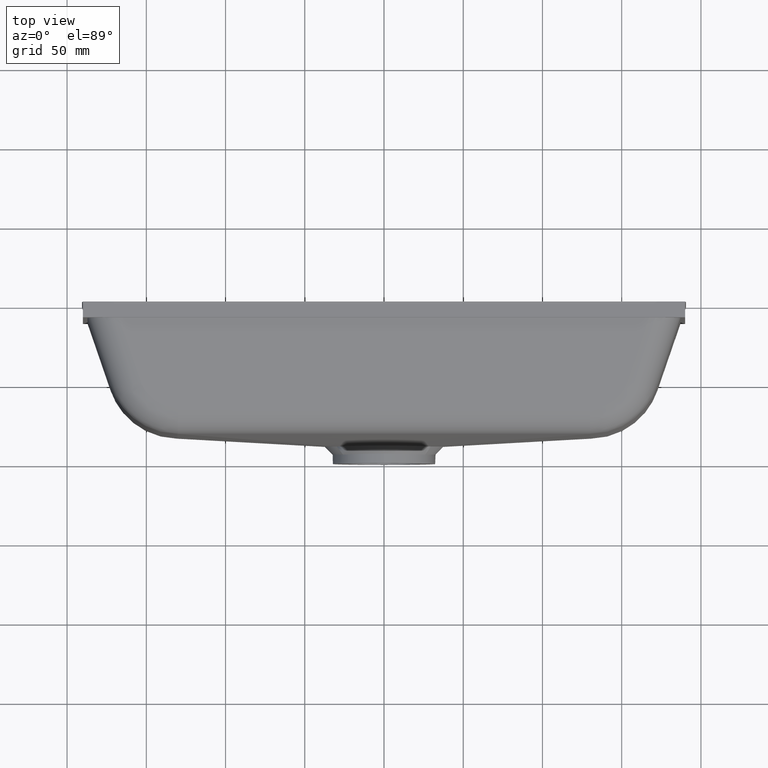
[diagram: clean part render]
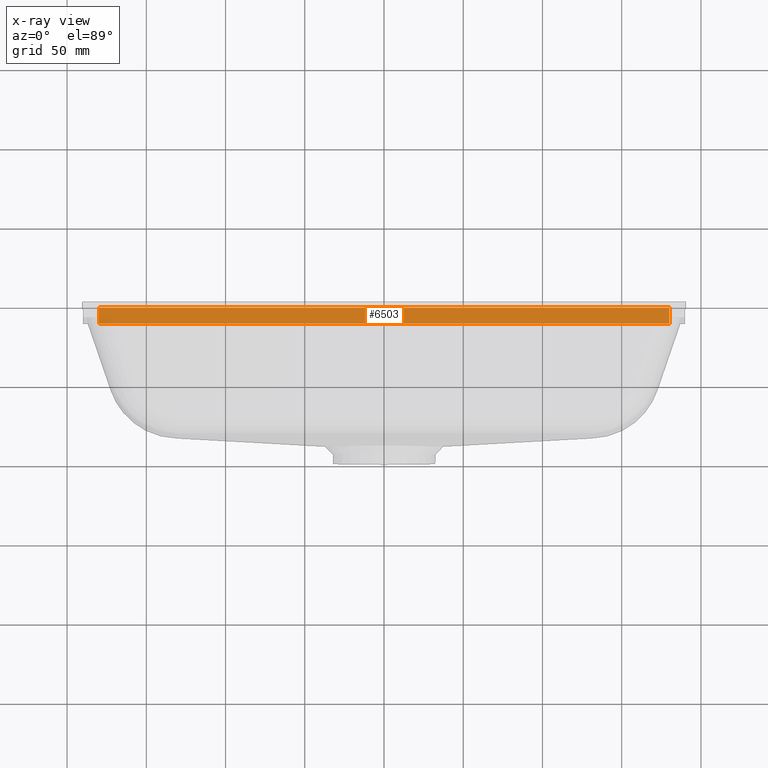
[diagram: x-ray — body ghosted, one internal face saturated and labeled with its STEP entity id]
A machine part, top view, then the same camera in x-ray: the body is ghosted and one INTERNAL B-rep face — a face not visible from any outside direction — is saturated and labeled: STEP entity #6503.
In plain terms, the highlighted planar face has unit normal (0, 0, -1).
Its self-contained STEP definition (entity closure, byte-faithful):
#96 = EDGE_CURVE ( 'NONE', #3015, #4471, #7068, .T. ) ;
#542 = ORIENTED_EDGE ( 'NONE', *, *, #96, .F. ) ;
#609 = EDGE_LOOP ( 'NONE', ( #3752, #1397, #542, #6658 ) ) ;
#906 = LINE ( 'NONE', #2809, #5950 ) ;
#1139 = CARTESIAN_POINT ( 'NONE',  ( 180.0000000000000000, -10.00000000000000000, -109.9999999999999700 ) ) ;
#1140 = DIRECTION ( 'NONE',  ( -1.000000000000000000, 0.0000000000000000000, -3.854941057726238500E-017 ) ) ;
#1224 = DIRECTION ( 'NONE',  ( 3.854941057726238500E-017, 0.0000000000000000000, -1.000000000000000000 ) ) ;
#1278 = CARTESIAN_POINT ( 'NONE',  ( -180.0000000000000000, -10.00000000000000000, -109.9999999999999900 ) ) ;
#1397 = ORIENTED_EDGE ( 'NONE', *, *, #4264, .F. ) ;
#1476 = VECTOR ( 'NONE', #2189, 1000.000000000000000 ) ;
#1660 = EDGE_CURVE ( 'NONE', #3015, #7267, #3408, .T. ) ;
#1705 = EDGE_CURVE ( 'NONE', #7267, #6801, #3382, .T. ) ;
#1767 = CARTESIAN_POINT ( 'NONE',  ( -180.0000000000000000, -10.00000000000000000, -109.9999999999999900 ) ) ;
#2023 = PLANE ( 'NONE',  #4662 ) ;
#2189 = DIRECTION ( 'NONE',  ( -1.000000000000000000, -0.0000000000000000000, -3.854941057726238500E-017 ) ) ;
#2338 = CARTESIAN_POINT ( 'NONE',  ( -180.0000000000000000, -10.00000000000000000, -109.9999999999999900 ) ) ;
#2669 = CARTESIAN_POINT ( 'NONE',  ( 180.0000000000000000, 0.0000000000000000000, -109.9999999999999700 ) ) ;
#2809 = CARTESIAN_POINT ( 'NONE',  ( -180.0000000000000000, -10.00000000000000000, -109.9999999999999900 ) ) ;
#3015 = VERTEX_POINT ( 'NONE', #4623 ) ;
#3382 = LINE ( 'NONE', #6925, #5129 ) ;
#3408 = LINE ( 'NONE', #1139, #4935 ) ;
#3752 = ORIENTED_EDGE ( 'NONE', *, *, #1705, .T. ) ;
#4044 = FACE_OUTER_BOUND ( 'NONE', #609, .T. ) ;
#4264 = EDGE_CURVE ( 'NONE', #4471, #6801, #906, .T. ) ;
#4471 = VERTEX_POINT ( 'NONE', #2338 ) ;
#4490 = DIRECTION ( 'NONE',  ( 0.0000000000000000000, 1.000000000000000000, 0.0000000000000000000 ) ) ;
#4623 = CARTESIAN_POINT ( 'NONE',  ( 180.0000000000000000, -10.00000000000000000, -109.9999999999999700 ) ) ;
#4662 = AXIS2_PLACEMENT_3D ( 'NONE', #1278, #1224, #1140 ) ;
#4935 = VECTOR ( 'NONE', #5048, 1000.000000000000000 ) ;
#5048 = DIRECTION ( 'NONE',  ( 0.0000000000000000000, 1.000000000000000000, 0.0000000000000000000 ) ) ;
#5129 = VECTOR ( 'NONE', #7000, 1000.000000000000000 ) ;
#5950 = VECTOR ( 'NONE', #4490, 1000.000000000000000 ) ;
#6438 = CARTESIAN_POINT ( 'NONE',  ( -180.0000000000000000, 0.0000000000000000000, -109.9999999999999900 ) ) ;
#6503 = ADVANCED_FACE ( 'NONE', ( #4044 ), #2023, .F. ) ;
#6658 = ORIENTED_EDGE ( 'NONE', *, *, #1660, .T. ) ;
#6801 = VERTEX_POINT ( 'NONE', #6438 ) ;
#6925 = CARTESIAN_POINT ( 'NONE',  ( -180.0000000000000000, 0.0000000000000000000, -109.9999999999999900 ) ) ;
#7000 = DIRECTION ( 'NONE',  ( -1.000000000000000000, -0.0000000000000000000, -3.854941057726238500E-017 ) ) ;
#7068 = LINE ( 'NONE', #1767, #1476 ) ;
#7267 = VERTEX_POINT ( 'NONE', #2669 ) ;